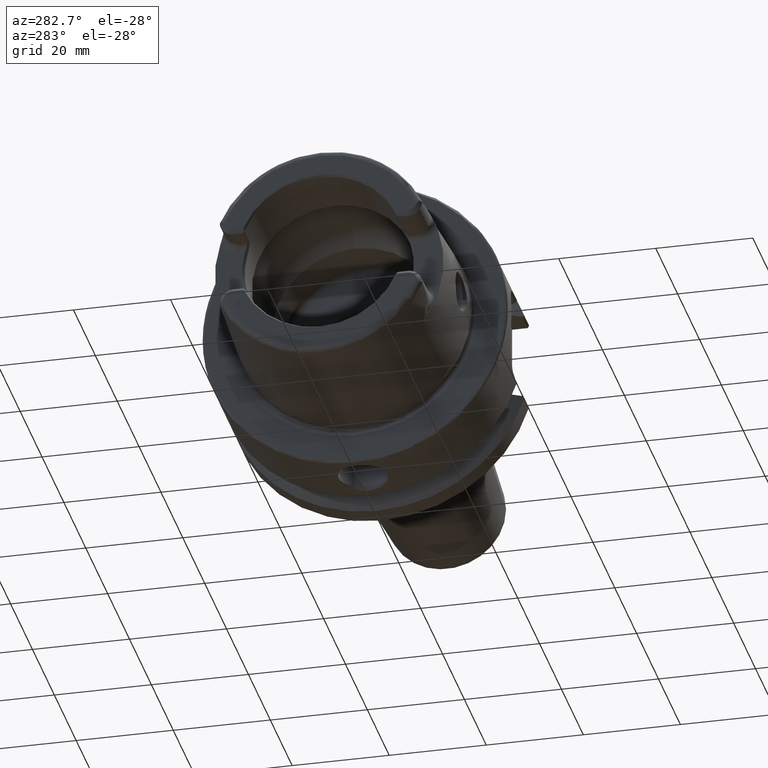
[diagram: clean part render]
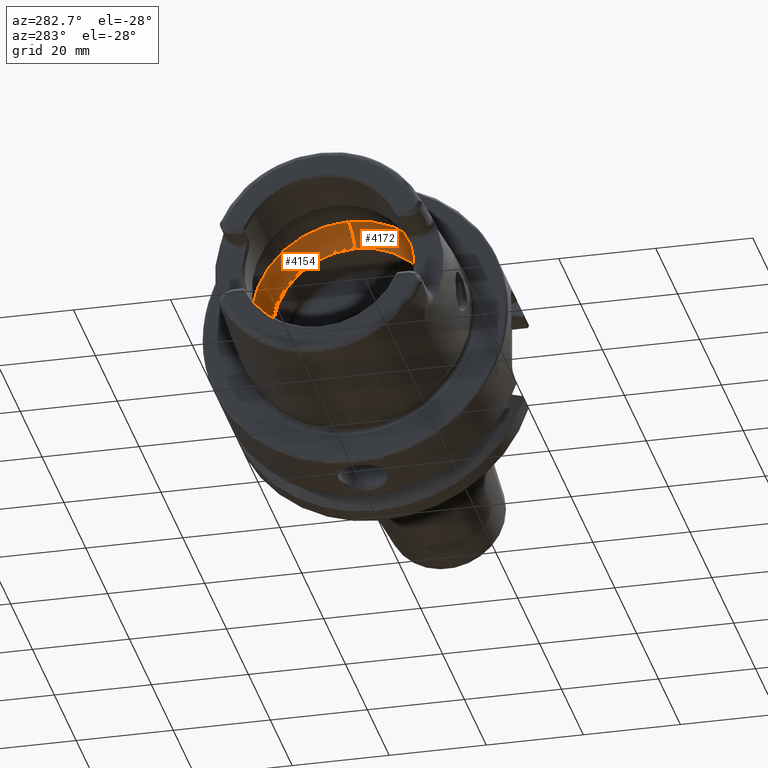
[diagram: same view with one multi-face feature highlighted, each face labeled with its STEP entity id]
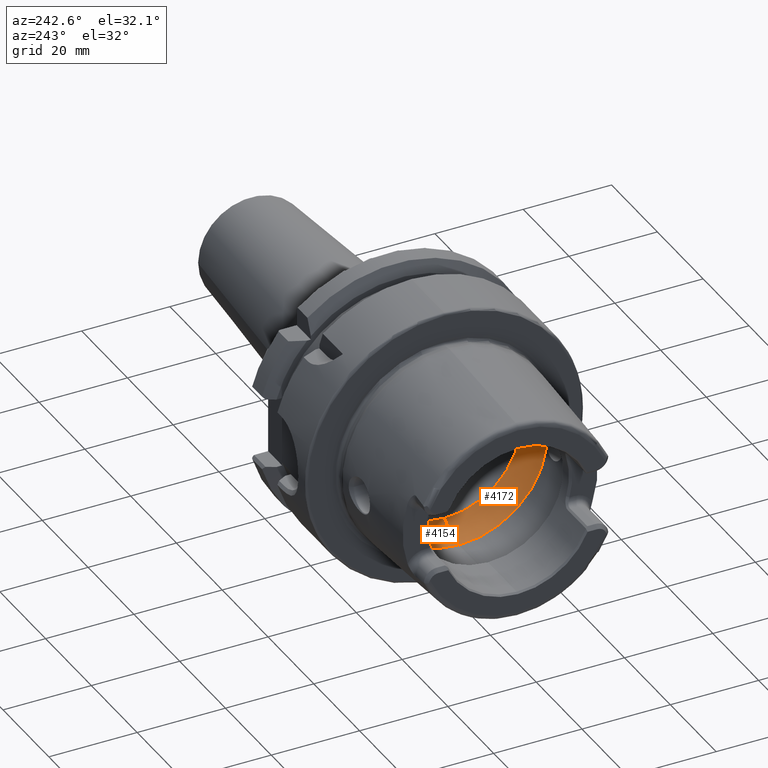
[diagram: same view with one multi-face feature highlighted, each face labeled with its STEP entity id]
A machine part, auxiliary view. The highlighted faces form ONE feature: a constant-radius fillet chain: 2 tangent blend faces with common blend radius 8.2014 mm. The faces share edges in the B-rep.
A second angle (auxiliary view) of the same feature is appended — it is thin or edge-on in the first view.
Their STEP definitions:
[1] entity #4172 (Torus):
#760=CARTESIAN_POINT('',(-2.460629921260E-1,-7.809777292935E-1,
-1.003743998739E-1));
#761=CARTESIAN_POINT('',(-2.402005167606E-1,-7.817904500629E-1,
-9.405090681336E-2));
#762=CARTESIAN_POINT('',(-2.292385755286E-1,-7.831163765237E-1,
-8.004374264075E-2));
#763=CARTESIAN_POINT('',(-2.160709145005E-1,-7.843328059987E-1,
-5.444410052114E-2));
#764=CARTESIAN_POINT('',(-2.082455432069E-1,-7.848949629276E-1,
-2.676616326652E-2));
#765=CARTESIAN_POINT('',(-2.066929133858E-1,-7.849923766583E-1,
-8.793227719460E-3));
#766=CARTESIAN_POINT('',(-2.066929133858E-1,-7.849923766583E-1,0.E0));
#768=CARTESIAN_POINT('',(-2.460629921260E-1,0.E0,-4.645120106011E-1));
#769=DIRECTION('',(0.E0,-1.E0,0.E0));
#770=DIRECTION('',(0.E0,0.E0,-1.E0));
#771=AXIS2_PLACEMENT_3D('',#768,#769,#770);
#773=CARTESIAN_POINT('',(0.E0,0.E0,0.E0));
#774=DIRECTION('',(1.E0,0.E0,0.E0));
#775=DIRECTION('',(0.E0,0.E0,1.E0));
#776=AXIS2_PLACEMENT_3D('',#773,#774,#775);
#778=CARTESIAN_POINT('',(-2.460629921260E-1,0.E0,4.645120106011E-1));
#779=DIRECTION('',(0.E0,-1.E0,0.E0));
#780=DIRECTION('',(7.620654936134E-1,0.E0,6.474999486052E-1));
#781=AXIS2_PLACEMENT_3D('',#778,#779,#780);
#783=CARTESIAN_POINT('',(-2.066929133858E-1,-7.849923766583E-1,0.E0));
#784=CARTESIAN_POINT('',(-2.066929133858E-1,-7.849923766583E-1,
8.917205662986E-3));
#785=CARTESIAN_POINT('',(-2.082950968867E-1,-7.848918185505E-1,
2.705640292416E-2));
#786=CARTESIAN_POINT('',(-2.161565827517E-1,-7.843256986775E-1,
5.463510373136E-2));
#787=CARTESIAN_POINT('',(-2.292881132747E-1,-7.831106111666E-1,
8.010902370640E-2));
#788=CARTESIAN_POINT('',(-2.402178728203E-1,-7.817880439752E-1,
9.406962773180E-2));
#789=CARTESIAN_POINT('',(-2.460629921260E-1,-7.809777292935E-1,
1.003743998739E-1));
#805=CARTESIAN_POINT('',(-2.460629921260E-1,-7.809777292935E-1,
-1.003743998739E-1));
#807=CARTESIAN_POINT('',(-2.460629921260E-1,-7.809777292935E-1,
1.003743998739E-1));
#823=CARTESIAN_POINT('',(-2.460629921260E-1,0.E0,0.E0));
#824=DIRECTION('',(1.E0,0.E0,0.E0));
#825=DIRECTION('',(0.E0,0.E0,1.E0));
#826=AXIS2_PLACEMENT_3D('',#823,#824,#825);
#836=CARTESIAN_POINT('',(-2.460629921260E-1,0.E0,0.E0));
#837=DIRECTION('',(1.E0,0.E0,0.E0));
#838=DIRECTION('',(0.E0,-9.918417211620E-1,-1.274754884772E-1));
#839=AXIS2_PLACEMENT_3D('',#836,#837,#838);
#2875=CARTESIAN_POINT('',(-2.460629921260E-1,0.E0,-7.874015708661E-1));
#2876=VERTEX_POINT('',#2875);
#2877=CARTESIAN_POINT('',(-2.460629921260E-1,0.E0,7.874015708661E-1));
#2878=VERTEX_POINT('',#2877);
#3126=VERTEX_POINT('',#805);
#3127=VERTEX_POINT('',#807);
#3129=VERTEX_POINT('',#766);
#3248=CARTESIAN_POINT('',(0.E0,0.E0,-6.735829842779E-1));
#3249=CARTESIAN_POINT('',(0.E0,0.E0,6.735829842779E-1));
#3250=VERTEX_POINT('',#3248);
#3251=VERTEX_POINT('',#3249);
#4155=CARTESIAN_POINT('',(-2.460629921260E-1,0.E0,0.E0));
#4156=DIRECTION('',(1.E0,0.E0,0.E0));
#4157=DIRECTION('',(0.E0,0.E0,1.E0));
#4158=AXIS2_PLACEMENT_3D('',#4155,#4156,#4157);
#4159=TOROIDAL_SURFACE('',#4158,4.645120106011E-1,3.228895602650E-1);
#4160=ORIENTED_EDGE('',*,*,#4073,.F.);
#4162=ORIENTED_EDGE('',*,*,#4161,.T.);
#4163=ORIENTED_EDGE('',*,*,#4149,.T.);
#4165=ORIENTED_EDGE('',*,*,#4164,.F.);
#4166=ORIENTED_EDGE('',*,*,#4145,.T.);
#4168=ORIENTED_EDGE('',*,*,#4167,.T.);
#4169=ORIENTED_EDGE('',*,*,#4129,.F.);
#4170=EDGE_LOOP('',(#4160,#4162,#4163,#4165,#4166,#4168,#4169));
#4171=FACE_OUTER_BOUND('',#4170,.F.);
#4172=ADVANCED_FACE('',(#4171),#4159,.F.);
#767=B_SPLINE_CURVE_WITH_KNOTS('',3,(#760,#761,#762,#763,#764,#765,#766),
.UNSPECIFIED.,.F.,.F.,(4,1,1,1,4),(0.E0,2.5E-1,5.E-1,7.5E-1,1.E0),
.UNSPECIFIED.);
#772=CIRCLE('',#771,3.228895602650E-1);
#777=CIRCLE('',#776,6.735829842779E-1);
#782=CIRCLE('',#781,3.228895602650E-1);
#790=B_SPLINE_CURVE_WITH_KNOTS('',3,(#783,#784,#785,#786,#787,#788,#789),
.UNSPECIFIED.,.F.,.F.,(4,1,1,1,4),(0.E0,2.5E-1,5.E-1,7.5E-1,1.E0),
.UNSPECIFIED.);
#827=CIRCLE('',#826,7.874015708661E-1);
#840=CIRCLE('',#839,7.874015708661E-1);
#4073=EDGE_CURVE('',#3126,#3129,#767,.T.);
#4129=EDGE_CURVE('',#3129,#3127,#790,.T.);
#4145=EDGE_CURVE('',#3251,#2878,#782,.T.);
#4149=EDGE_CURVE('',#2876,#3250,#772,.T.);
#4161=EDGE_CURVE('',#3126,#2876,#840,.T.);
#4164=EDGE_CURVE('',#3251,#3250,#777,.T.);
#4167=EDGE_CURVE('',#2878,#3127,#827,.T.);
[2] entity #4154 (Torus):
#653=CARTESIAN_POINT('',(-2.460629921260E-1,7.809777292935E-1,
-1.003743998739E-1));
#669=CARTESIAN_POINT('',(-2.460629921260E-1,0.E0,0.E0));
#670=DIRECTION('',(1.E0,0.E0,0.E0));
#671=DIRECTION('',(0.E0,0.E0,-1.E0));
#672=AXIS2_PLACEMENT_3D('',#669,#670,#671);
#674=CARTESIAN_POINT('',(-2.460629921260E-1,0.E0,0.E0));
#675=DIRECTION('',(1.E0,0.E0,0.E0));
#676=DIRECTION('',(0.E0,9.918417211620E-1,1.274754884772E-1));
#677=AXIS2_PLACEMENT_3D('',#674,#675,#676);
#693=CARTESIAN_POINT('',(-2.460629921260E-1,7.809777292935E-1,
1.003743998739E-1));
#739=CARTESIAN_POINT('',(-2.066929133858E-1,7.849923766583E-1,0.E0));
#740=CARTESIAN_POINT('',(-2.066929133858E-1,7.849923766583E-1,
-8.793227719460E-3));
#741=CARTESIAN_POINT('',(-2.082455432069E-1,7.848949629276E-1,
-2.676616326652E-2));
#742=CARTESIAN_POINT('',(-2.160709145005E-1,7.843328059987E-1,
-5.444410052114E-2));
#743=CARTESIAN_POINT('',(-2.292385755286E-1,7.831163765237E-1,
-8.004374264075E-2));
#744=CARTESIAN_POINT('',(-2.402005167606E-1,7.817904500629E-1,
-9.405090681336E-2));
#745=CARTESIAN_POINT('',(-2.460629921260E-1,7.809777292935E-1,
-1.003743998739E-1));
#747=CARTESIAN_POINT('',(-2.460629921260E-1,7.809777292935E-1,
1.003743998739E-1));
#748=CARTESIAN_POINT('',(-2.402178728203E-1,7.817880439752E-1,
9.406962773180E-2));
#749=CARTESIAN_POINT('',(-2.292881132747E-1,7.831106111666E-1,
8.010902370640E-2));
#750=CARTESIAN_POINT('',(-2.161565827517E-1,7.843256986775E-1,
5.463510373136E-2));
#751=CARTESIAN_POINT('',(-2.082950968867E-1,7.848918185505E-1,
2.705640292416E-2));
#752=CARTESIAN_POINT('',(-2.066929133858E-1,7.849923766583E-1,
8.917205662986E-3));
#753=CARTESIAN_POINT('',(-2.066929133858E-1,7.849923766583E-1,0.E0));
#755=CARTESIAN_POINT('',(0.E0,0.E0,0.E0));
#756=DIRECTION('',(1.E0,0.E0,0.E0));
#757=DIRECTION('',(0.E0,0.E0,-1.E0));
#758=AXIS2_PLACEMENT_3D('',#755,#756,#757);
#768=CARTESIAN_POINT('',(-2.460629921260E-1,0.E0,-4.645120106011E-1));
#769=DIRECTION('',(0.E0,-1.E0,0.E0));
#770=DIRECTION('',(0.E0,0.E0,-1.E0));
#771=AXIS2_PLACEMENT_3D('',#768,#769,#770);
#778=CARTESIAN_POINT('',(-2.460629921260E-1,0.E0,4.645120106011E-1));
#779=DIRECTION('',(0.E0,-1.E0,0.E0));
#780=DIRECTION('',(7.620654936134E-1,0.E0,6.474999486052E-1));
#781=AXIS2_PLACEMENT_3D('',#778,#779,#780);
#2875=CARTESIAN_POINT('',(-2.460629921260E-1,0.E0,-7.874015708661E-1));
#2876=VERTEX_POINT('',#2875);
#2877=CARTESIAN_POINT('',(-2.460629921260E-1,0.E0,7.874015708661E-1));
#2878=VERTEX_POINT('',#2877);
#3122=VERTEX_POINT('',#653);
#3124=VERTEX_POINT('',#693);
#3128=VERTEX_POINT('',#739);
#3248=CARTESIAN_POINT('',(0.E0,0.E0,-6.735829842779E-1));
#3249=CARTESIAN_POINT('',(0.E0,0.E0,6.735829842779E-1));
#3250=VERTEX_POINT('',#3248);
#3251=VERTEX_POINT('',#3249);
#4137=CARTESIAN_POINT('',(-2.460629921260E-1,0.E0,0.E0));
#4138=DIRECTION('',(1.E0,0.E0,0.E0));
#4139=DIRECTION('',(0.E0,0.E0,1.E0));
#4140=AXIS2_PLACEMENT_3D('',#4137,#4138,#4139);
#4141=TOROIDAL_SURFACE('',#4140,4.645120106011E-1,3.228895602650E-1);
#4142=ORIENTED_EDGE('',*,*,#4054,.F.);
#4143=ORIENTED_EDGE('',*,*,#4115,.F.);
#4144=ORIENTED_EDGE('',*,*,#4038,.T.);
#4146=ORIENTED_EDGE('',*,*,#4145,.F.);
#4148=ORIENTED_EDGE('',*,*,#4147,.F.);
#4150=ORIENTED_EDGE('',*,*,#4149,.F.);
#4151=ORIENTED_EDGE('',*,*,#4031,.T.);
#4152=EDGE_LOOP('',(#4142,#4143,#4144,#4146,#4148,#4150,#4151));
#4153=FACE_OUTER_BOUND('',#4152,.F.);
#4154=ADVANCED_FACE('',(#4153),#4141,.F.);
#673=CIRCLE('',#672,7.874015708661E-1);
#678=CIRCLE('',#677,7.874015708661E-1);
#746=B_SPLINE_CURVE_WITH_KNOTS('',3,(#739,#740,#741,#742,#743,#744,#745),
.UNSPECIFIED.,.F.,.F.,(4,1,1,1,4),(0.E0,2.5E-1,5.E-1,7.5E-1,1.E0),
.UNSPECIFIED.);
#754=B_SPLINE_CURVE_WITH_KNOTS('',3,(#747,#748,#749,#750,#751,#752,#753),
.UNSPECIFIED.,.F.,.F.,(4,1,1,1,4),(0.E0,2.5E-1,5.E-1,7.5E-1,1.E0),
.UNSPECIFIED.);
#759=CIRCLE('',#758,6.735829842779E-1);
#772=CIRCLE('',#771,3.228895602650E-1);
#782=CIRCLE('',#781,3.228895602650E-1);
#4031=EDGE_CURVE('',#2876,#3122,#673,.T.);
#4038=EDGE_CURVE('',#3124,#2878,#678,.T.);
#4054=EDGE_CURVE('',#3128,#3122,#746,.T.);
#4115=EDGE_CURVE('',#3124,#3128,#754,.T.);
#4145=EDGE_CURVE('',#3251,#2878,#782,.T.);
#4147=EDGE_CURVE('',#3250,#3251,#759,.T.);
#4149=EDGE_CURVE('',#2876,#3250,#772,.T.);